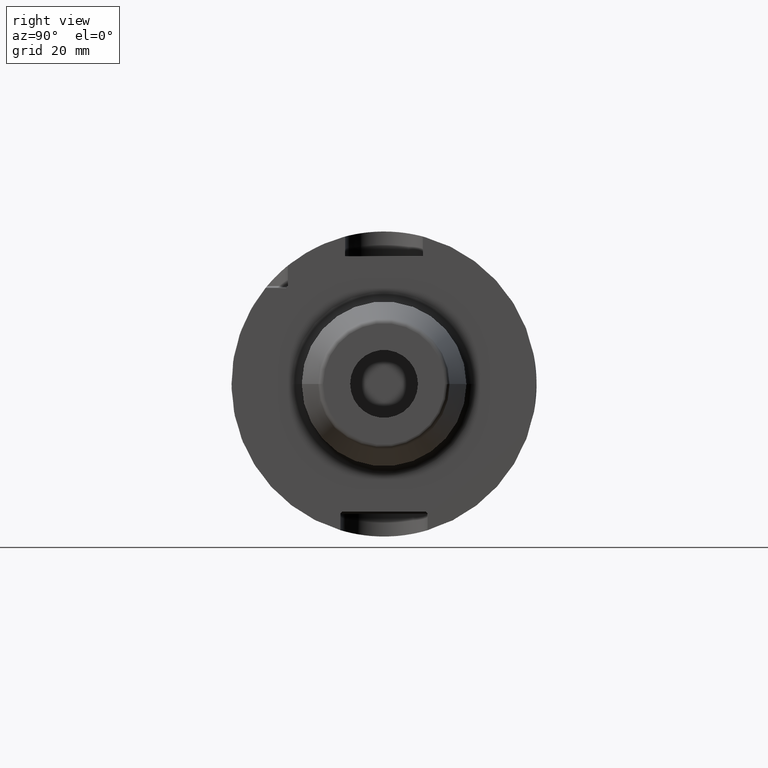
[diagram: clean part render]
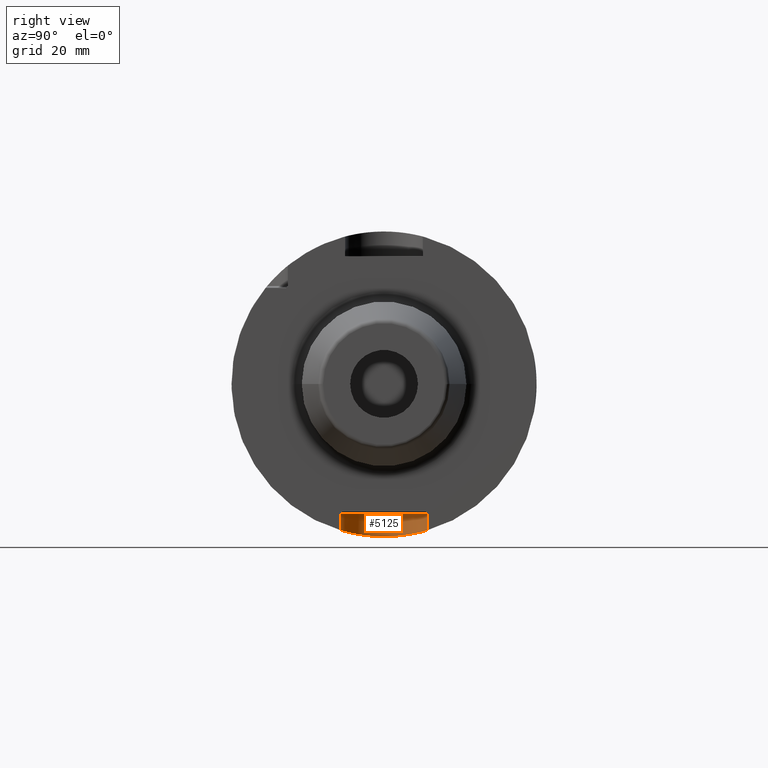
[diagram: same view with one face highlighted and labeled with its STEP entity id]
A machine part, right view. The second image highlights one B-rep face of the part: STEP entity #5125.
In plain terms, the highlighted cylindrical surface (partial cylindrical patch) has radius 9.0175 mm, axis along (0, 0, -1).
Its self-contained STEP definition (entity closure, byte-faithful):
#1332=DIRECTION('',(-1.163229195409E-9,1.536079197523E-7,-1.E0));
#1333=VECTOR('',#1332,3.381694160497E0);
#1334=CARTESIAN_POINT('',(1.396750000393E1,9.017499480545E0,-2.680000051939E1));
#1335=LINE('',#1334,#1333);
#1588=CARTESIAN_POINT('',(1.39675E1,9.0175E0,-3.018169467989E1));
#1589=CARTESIAN_POINT('',(1.358558656281E1,9.0175E0,-3.018169467989E1));
#1590=CARTESIAN_POINT('',(1.282118465468E1,8.969691357916E0,-3.019604517684E1));
#1591=CARTESIAN_POINT('',(1.165591828593E1,8.743491566228E0,-3.026274300150E1));
#1592=CARTESIAN_POINT('',(1.052276298313E1,8.361963120688E0,-3.037104920547E1));
#1593=CARTESIAN_POINT('',(9.456122836012E0,7.837772025634E0,-3.051135915032E1));
#1594=CARTESIAN_POINT('',(8.470252282138E0,7.180724754911E0,-3.067358430769E1));
#1595=CARTESIAN_POINT('',(7.575631308163E0,6.398050863983E0,-3.084741609441E1));
#1596=CARTESIAN_POINT('',(6.786194961893E0,5.497065304782E0,-3.102161724462E1));
#1597=CARTESIAN_POINT('',(6.130229967676E0,4.511622175765E0,-3.118093411543E1));
#1598=CARTESIAN_POINT('',(5.609342792779E0,3.453031312959E0,-3.131662634576E1));
#1599=CARTESIAN_POINT('',(5.228345621102E0,2.326812347583E0,-3.142101017036E1));
#1600=CARTESIAN_POINT('',(4.999797746036E0,1.164288452435E0,-3.148568890825E1));
#1601=CARTESIAN_POINT('',(4.925086592477E0,-1.642939922344E-4,
-3.150715972921E1));
#1602=CARTESIAN_POINT('',(4.999855898167E0,-1.164866928839E0,
-3.148567217088E1));
#1603=CARTESIAN_POINT('',(5.228566513789E0,-2.327652949522E0,
-3.142094829471E1));
#1604=CARTESIAN_POINT('',(5.609617740094E0,-3.453657849156E0,
-3.131655310854E1));
#1605=CARTESIAN_POINT('',(6.130421690937E0,-4.511937610781E0,
-3.118088635565E1));
#1606=CARTESIAN_POINT('',(6.786402135999E0,-5.497346241188E0,
-3.102156844966E1));
#1607=CARTESIAN_POINT('',(7.576014991373E0,-6.398444919226E0,
-3.084733497918E1));
#1608=CARTESIAN_POINT('',(8.470738074749E0,-7.181093772441E0,
-3.067349724349E1));
#1609=CARTESIAN_POINT('',(9.456668390199E0,-7.838101066607E0,
-3.051127521442E1));
#1610=CARTESIAN_POINT('',(1.052385858790E1,-8.362443708215E0,
-3.037091729406E1));
#1611=CARTESIAN_POINT('',(1.165737665338E1,-8.743869582945E0,
-3.026263280158E1));
#1612=CARTESIAN_POINT('',(1.282210884292E1,-8.969775642486E0,
-3.019601972103E1));
#1613=CARTESIAN_POINT('',(1.358595047E1,-9.0175E0,-3.018169467989E1));
#1614=CARTESIAN_POINT('',(1.39675E1,-9.0175E0,-3.018169467989E1));
#1890=DIRECTION('',(-9.917684677841E-10,-1.536038771513E-7,-1.E0));
#1891=VECTOR('',#1890,3.381694160483E0);
#1892=CARTESIAN_POINT('',(1.396750000335E1,-9.017499480559E0,
-2.680000051941E1));
#1893=LINE('',#1892,#1891);
#1894=CARTESIAN_POINT('',(1.39675E1,0.E0,-2.680000125403E1));
#1895=DIRECTION('',(0.E0,0.E0,1.E0));
#1896=DIRECTION('',(0.E0,1.E0,0.E0));
#1897=AXIS2_PLACEMENT_3D('',#1894,#1895,#1896);
#2931=CARTESIAN_POINT('',(1.396750000335E1,-9.017499480559E0,
-2.680000051941E1));
#2932=VERTEX_POINT('',#2931);
#2933=CARTESIAN_POINT('',(1.396750000393E1,9.017499480545E0,-2.680000051939E1));
#2934=VERTEX_POINT('',#2933);
#2953=CARTESIAN_POINT('',(1.39675E1,-9.0175E0,-3.018169467989E1));
#2954=VERTEX_POINT('',#2953);
#2955=CARTESIAN_POINT('',(1.39675E1,9.0175E0,-3.018169467989E1));
#2956=VERTEX_POINT('',#2955);
#5114=CARTESIAN_POINT('',(1.39675E1,0.E0,-2.64E1));
#5115=DIRECTION('',(0.E0,0.E0,-1.E0));
#5116=DIRECTION('',(1.E0,0.E0,0.E0));
#5117=AXIS2_PLACEMENT_3D('',#5114,#5115,#5116);
#5118=CYLINDRICAL_SURFACE('',#5117,9.0175E0);
#5119=ORIENTED_EDGE('',*,*,#5053,.F.);
#5120=ORIENTED_EDGE('',*,*,#5097,.F.);
#5121=ORIENTED_EDGE('',*,*,#4514,.T.);
#5122=ORIENTED_EDGE('',*,*,#4825,.T.);
#5123=EDGE_LOOP('',(#5119,#5120,#5121,#5122));
#5124=FACE_OUTER_BOUND('',#5123,.F.);
#5125=ADVANCED_FACE('',(#5124),#5118,.F.);
#1615=B_SPLINE_CURVE_WITH_KNOTS('',3,(#1588,#1589,#1590,#1591,#1592,#1593,#1594,
#1595,#1596,#1597,#1598,#1599,#1600,#1601,#1602,#1603,#1604,#1605,#1606,#1607,
#1608,#1609,#1610,#1611,#1612,#1613,#1614),.UNSPECIFIED.,.F.,.F.,(4,1,1,1,1,1,1,
1,1,1,1,1,1,1,1,1,1,1,1,1,1,1,1,1,4),(0.E0,4.166666666667E-2,8.333333333333E-2,
1.25E-1,1.666666666667E-1,2.083333333333E-1,2.5E-1,2.916666666667E-1,
3.333333333333E-1,3.75E-1,4.166666666667E-1,4.583333333333E-1,5.E-1,
5.416666666667E-1,5.833333333333E-1,6.25E-1,6.666666666667E-1,7.083333333333E-1,
7.5E-1,7.916666666667E-1,8.333333333333E-1,8.75E-1,9.166666666667E-1,
9.583333333333E-1,1.E0),.UNSPECIFIED.);
#1898=CIRCLE('',#1897,9.0175E0);
#4514=EDGE_CURVE('',#2934,#2956,#1335,.T.);
#4825=EDGE_CURVE('',#2956,#2954,#1615,.T.);
#5053=EDGE_CURVE('',#2932,#2954,#1893,.T.);
#5097=EDGE_CURVE('',#2934,#2932,#1898,.T.);